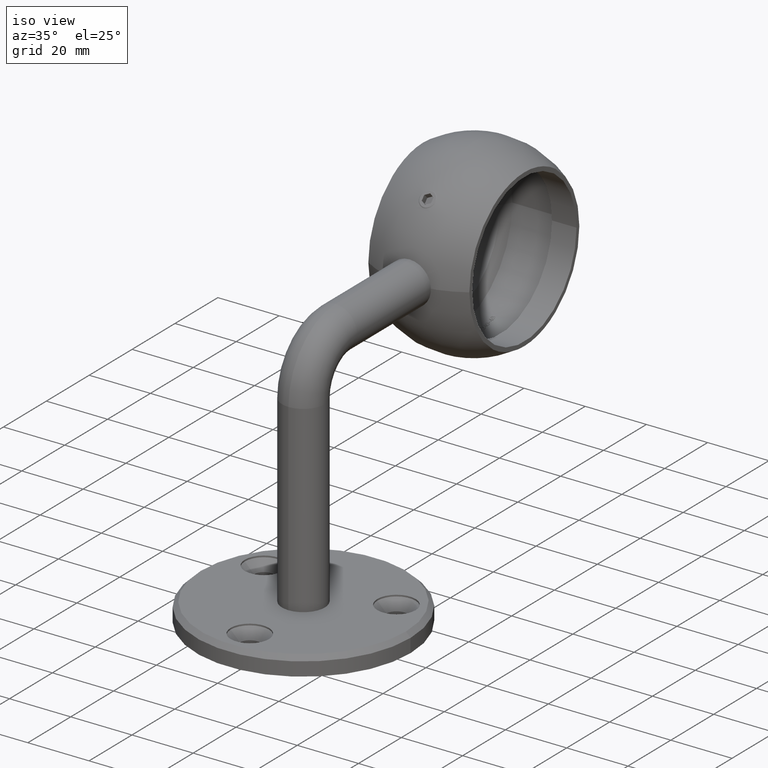
[diagram: clean part render]
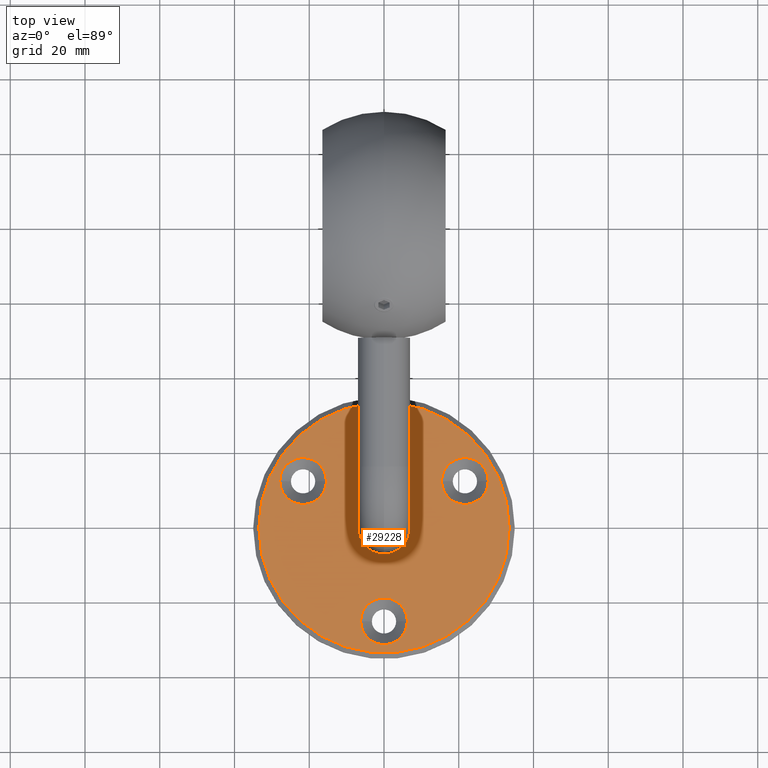
[diagram: tour spotlight — one face highlighted and labeled with its STEP entity id]
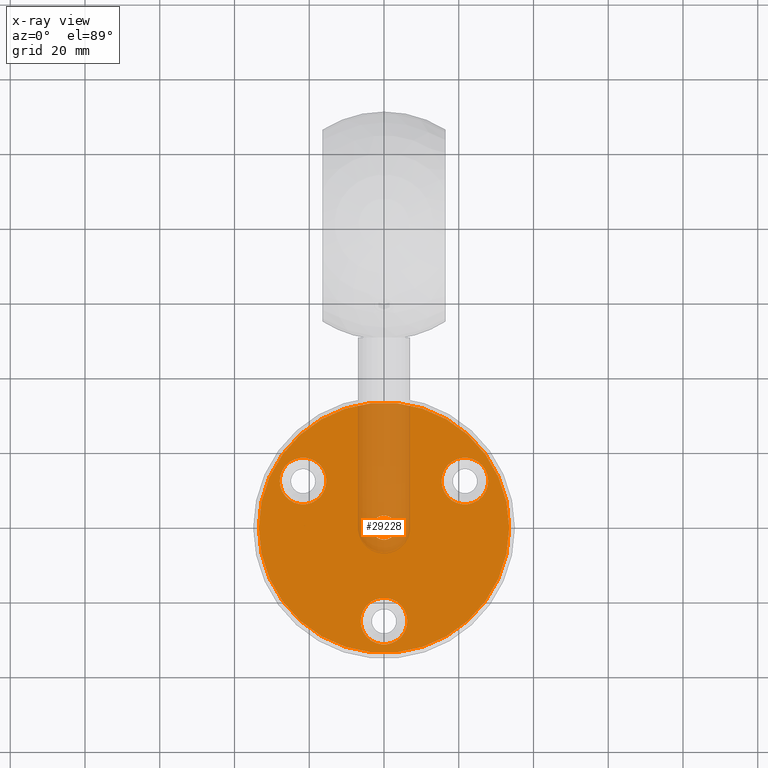
[diagram: x-ray of the same camera — body ghosted, this tour face saturated]
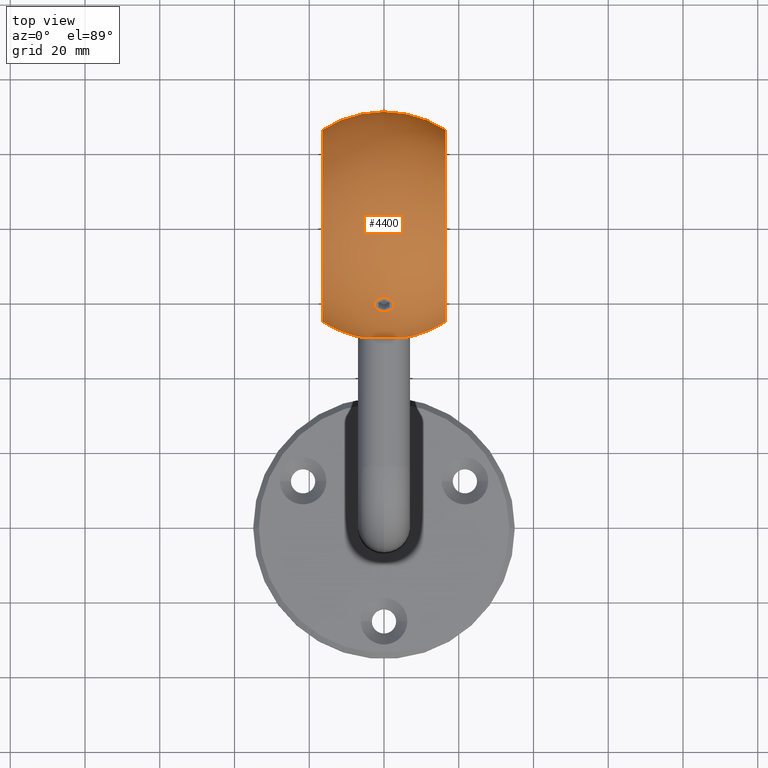
[diagram: tour spotlight — one face highlighted and labeled with its STEP entity id]
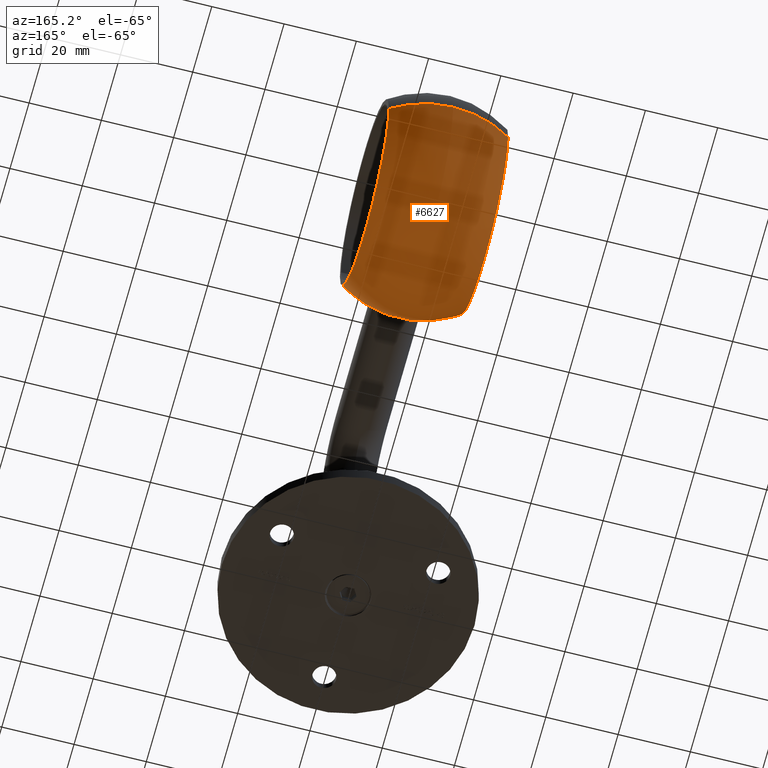
[diagram: tour spotlight — one face highlighted and labeled with its STEP entity id]
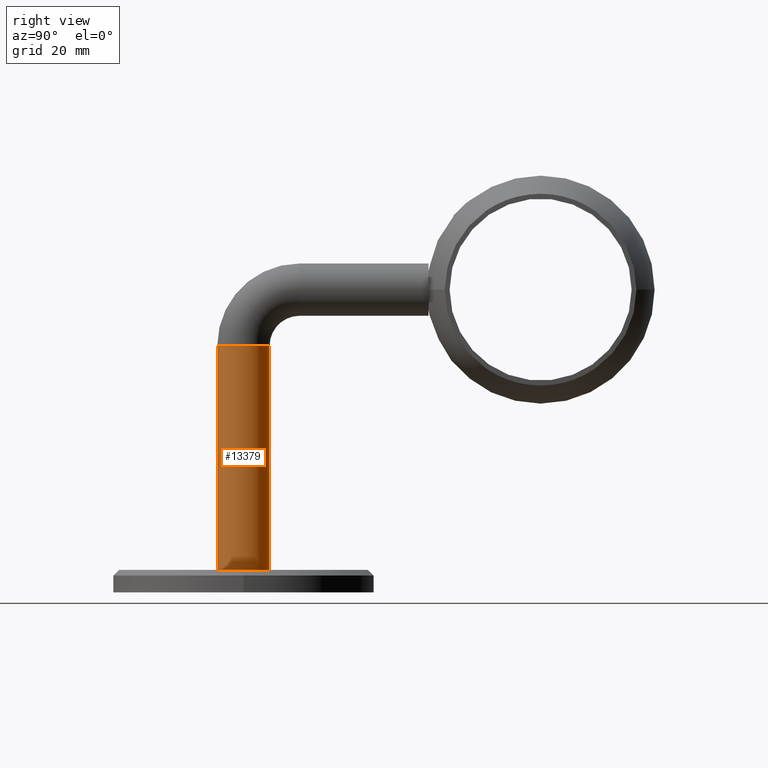
[diagram: tour spotlight — one face highlighted and labeled with its STEP entity id]
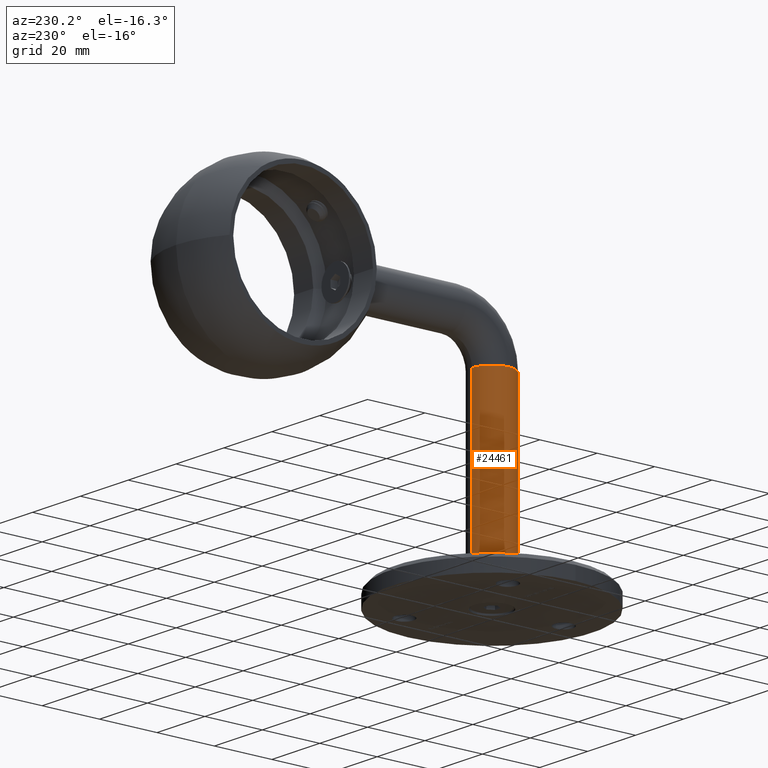
[diagram: tour spotlight — one face highlighted and labeled with its STEP entity id]
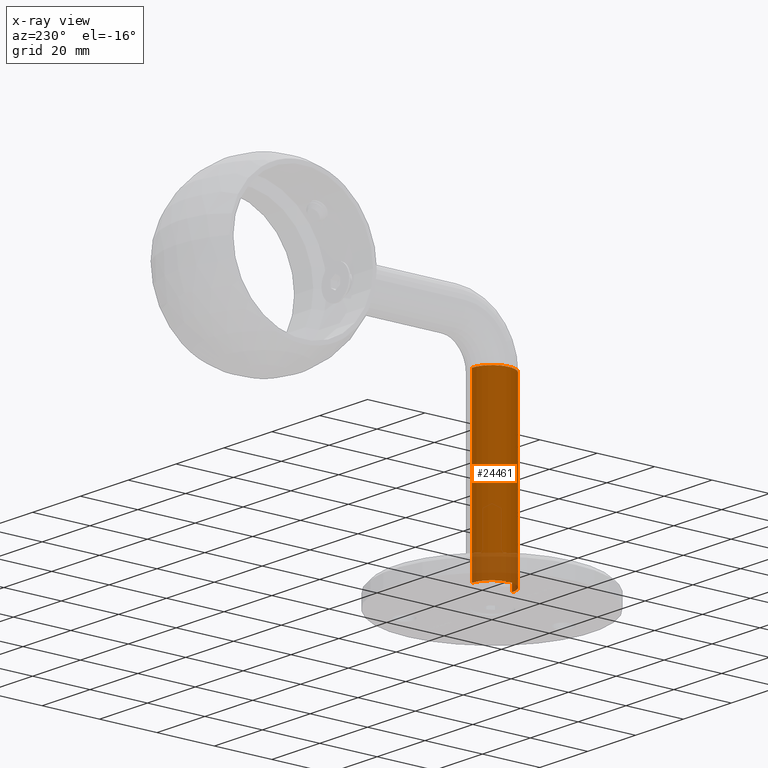
[diagram: x-ray of the same camera — body ghosted, this tour face saturated]
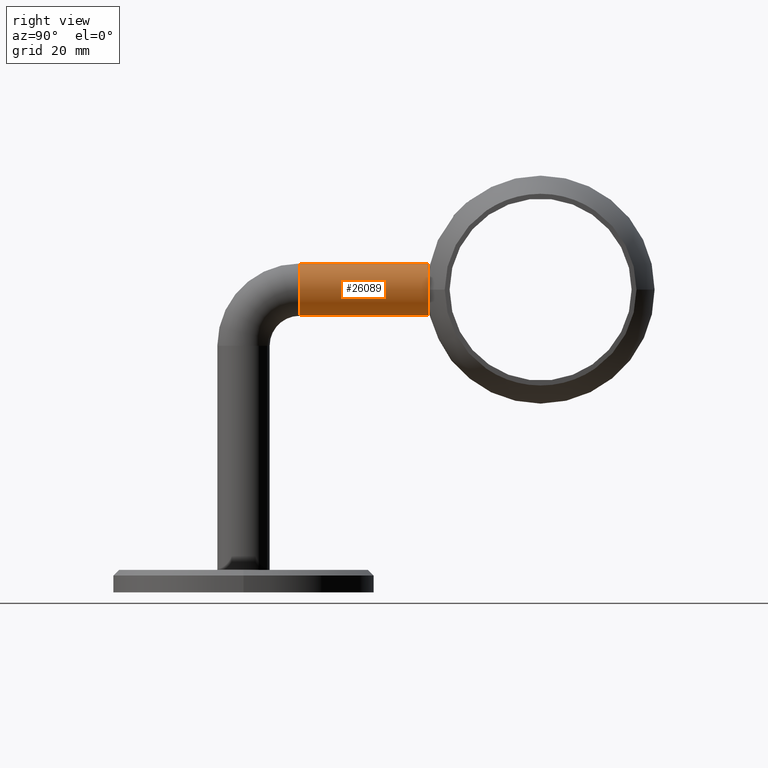
[diagram: tour spotlight — one face highlighted and labeled with its STEP entity id]
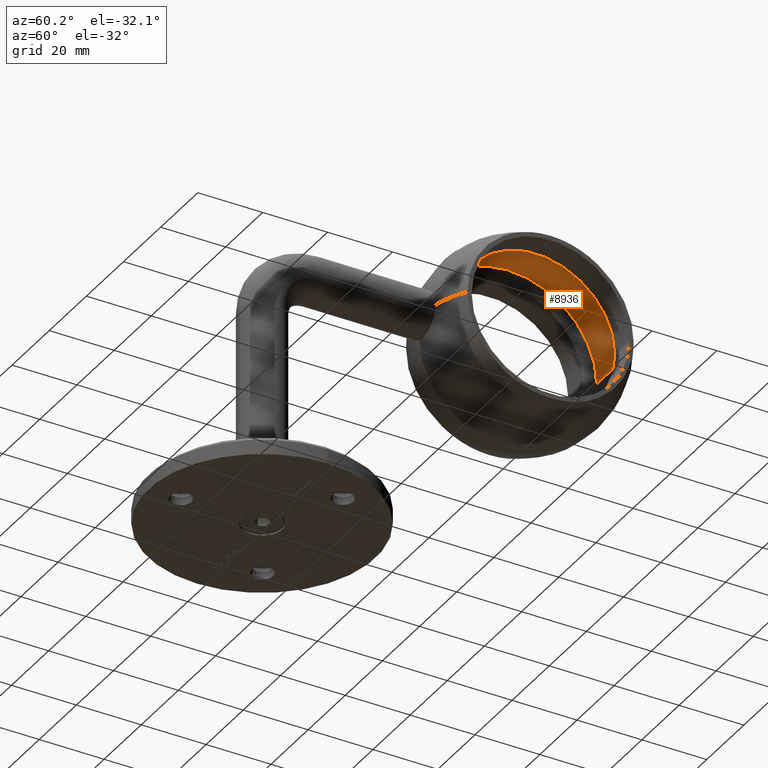
[diagram: tour spotlight — one face highlighted and labeled with its STEP entity id]
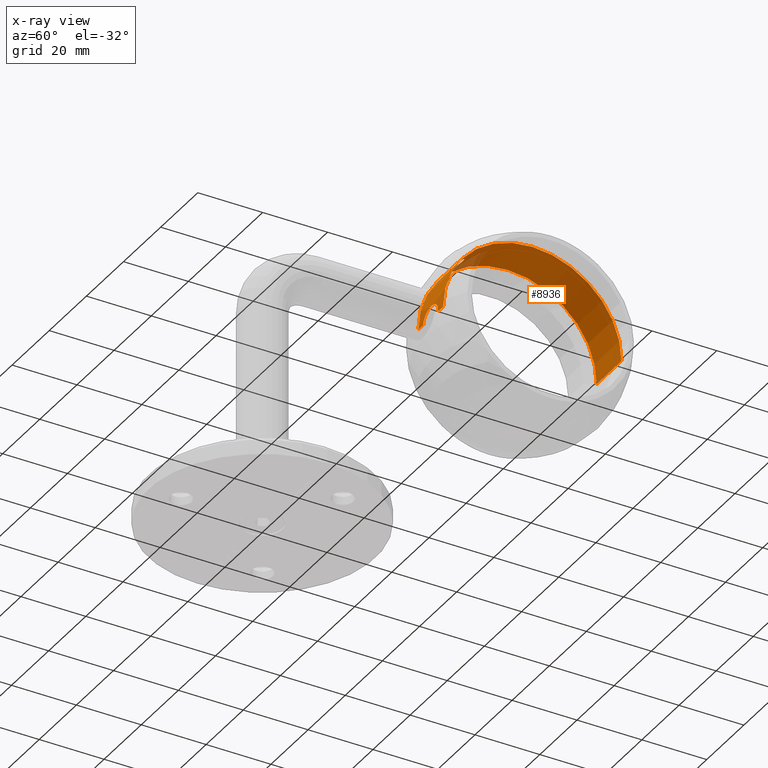
[diagram: x-ray of the same camera — body ghosted, this tour face saturated]
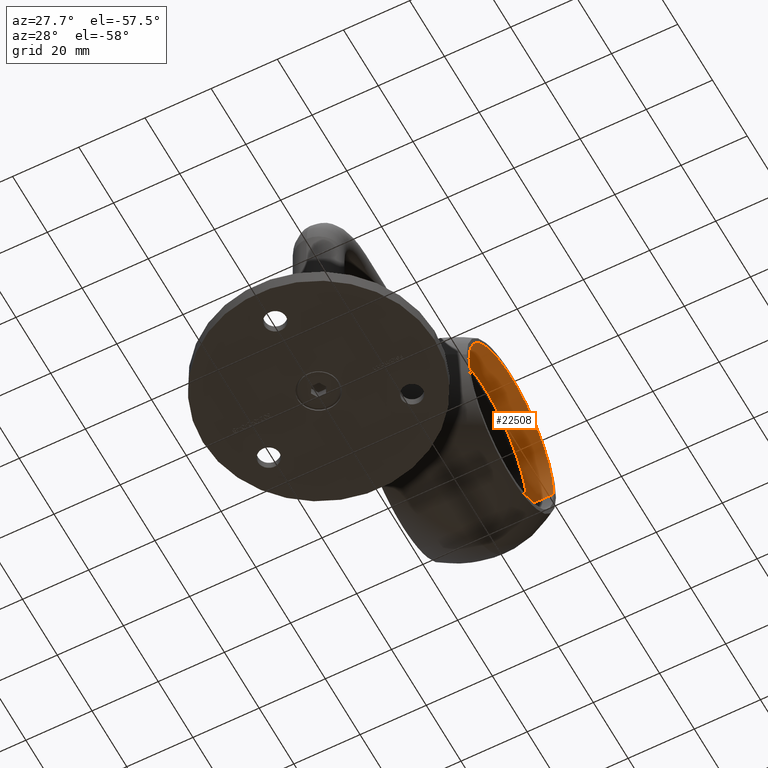
[diagram: tour spotlight — one face highlighted and labeled with its STEP entity id]
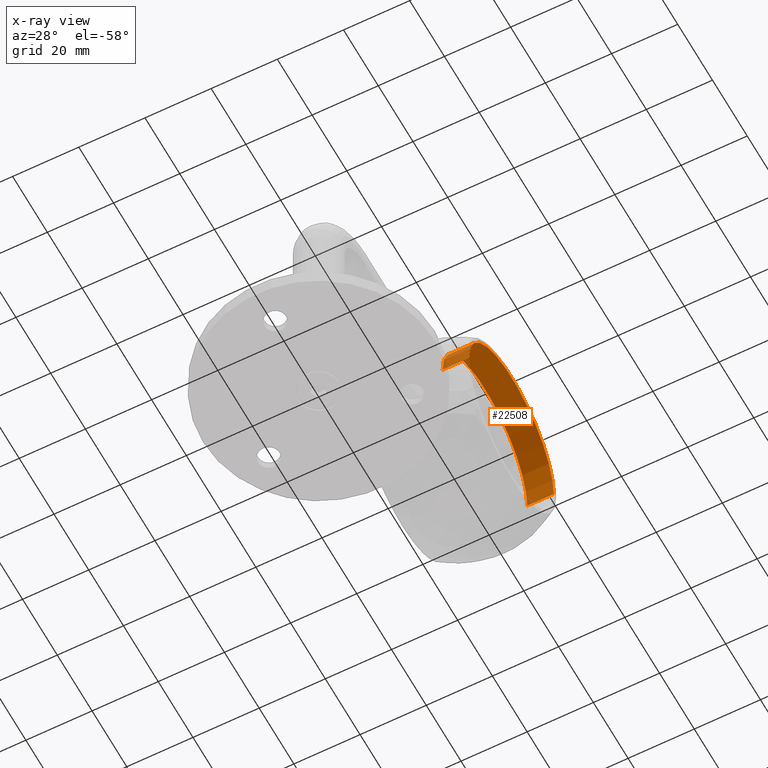
[diagram: x-ray of the same camera — body ghosted, this tour face saturated]
A machine part: a face-by-face anatomy tour. The part has 831 B-rep faces; the first image is the clean iso view, then the 8 largest visible faces are spotlighted one at a time (largest first), each with its STEP entity span.

Face 1 — top view, entity #29228. An x-ray twin of the same camera follows (body ghosted, this face saturated) — the face is partly hidden behind the body. In plain terms, the highlighted planar face has unit normal (0, 0, 1).
Definition (entity closure, byte-faithful):
#219 = PLANE ( 'NONE',  #20669 ) ;
#590 = CARTESIAN_POINT ( 'NONE',  ( -21.65063509461091584, 12.50000000000010303, 6.000000000000001776 ) ) ;
#776 = CARTESIAN_POINT ( 'NONE',  ( 15.40063509461108637, 12.49999999999979927, 6.000000000000001776 ) ) ;
#1119 = VERTEX_POINT ( 'NONE', #24276 ) ;
#1125 = AXIS2_PLACEMENT_3D ( 'NONE', #17915, #5354, #1814 ) ;
#1145 = EDGE_LOOP ( 'NONE', ( #30311, #2206 ) ) ;
#1329 = CARTESIAN_POINT ( 'NONE',  ( 6.249999999999998224, -25.00000000000000000, 6.000000000000001776 ) ) ;
#1814 = DIRECTION ( 'NONE',  ( 1.000000000000000000, 0.000000000000000000, 0.000000000000000000 ) ) ;
#1920 = AXIS2_PLACEMENT_3D ( 'NONE', #2513, #15777, #7804 ) ;
#2005 = CIRCLE ( 'NONE', #26772, 6.249999999999998224 ) ;
#2206 = ORIENTED_EDGE ( 'NONE', *, *, #32135, .F. ) ;
#2408 = CIRCLE ( 'NONE', #1920, 33.50000000000002842 ) ;
#2513 = CARTESIAN_POINT ( 'NONE',  ( 0.000000000000000000, 0.000000000000000000, 5.999999999999998224 ) ) ;
#2539 = AXIS2_PLACEMENT_3D ( 'NONE', #27577, #5792, #24610 ) ;
#2683 = CARTESIAN_POINT ( 'NONE',  ( -27.90063509461091229, 12.50000000000010303, 6.000000000000001776 ) ) ;
#2851 = DIRECTION ( 'NONE',  ( -0.000000000000000000, -0.000000000000000000, 1.000000000000000000 ) ) ;
#3898 = EDGE_CURVE ( 'NONE', #28138, #1119, #5057, .T. ) ;
#5057 = CIRCLE ( 'NONE', #1125, 6.249999999999998224 ) ;
#5180 = ORIENTED_EDGE ( 'NONE', *, *, #26201, .T. ) ;
#5354 = DIRECTION ( 'NONE',  ( -0.000000000000000000, -0.000000000000000000, 1.000000000000000000 ) ) ;
#5561 = DIRECTION ( 'NONE',  ( 1.000000000000000000, 0.000000000000000000, 0.000000000000000000 ) ) ;
#5758 = VERTEX_POINT ( 'NONE', #34297 ) ;
#5792 = DIRECTION ( 'NONE',  ( -0.000000000000000000, -0.000000000000000000, 1.000000000000000000 ) ) ;
#6303 = AXIS2_PLACEMENT_3D ( 'NONE', #19621, #33235, #22348 ) ;
#7089 = ORIENTED_EDGE ( 'NONE', *, *, #27634, .F. ) ;
#7804 = DIRECTION ( 'NONE',  ( 1.000000000000000000, 0.000000000000000000, 0.000000000000000000 ) ) ;
#8215 = DIRECTION ( 'NONE',  ( 0.000000000000000000, 0.000000000000000000, 1.000000000000000000 ) ) ;
#8366 = VERTEX_POINT ( 'NONE', #1329 ) ;
#8378 = FACE_BOUND ( 'NONE', #9412, .T. ) ;
#8821 = CIRCLE ( 'NONE', #2539, 6.249999999999998224 ) ;
#9412 = EDGE_LOOP ( 'NONE', ( #7089, #25381 ) ) ;
#10133 = VERTEX_POINT ( 'NONE', #17264 ) ;
#10145 = CARTESIAN_POINT ( 'NONE',  ( 0.000000000000000000, -25.00000000000000000, 6.000000000000001776 ) ) ;
#10323 = EDGE_CURVE ( 'NONE', #1119, #28138, #11791, .T. ) ;
#10664 = CIRCLE ( 'NONE', #19837, 3.250000000000004441 ) ;
#10746 = DIRECTION ( 'NONE',  ( 1.000000000000000000, 0.000000000000000000, 0.000000000000000000 ) ) ;
#11373 = DIRECTION ( 'NONE',  ( -0.000000000000000000, -0.000000000000000000, 1.000000000000000000 ) ) ;
#11791 = CIRCLE ( 'NONE', #14511, 6.249999999999998224 ) ;
#12892 = CIRCLE ( 'NONE', #24281, 33.50000000000002842 ) ;
#13164 = EDGE_CURVE ( 'NONE', #24125, #23655, #2005, .T. ) ;
#13380 = EDGE_CURVE ( 'NONE', #10133, #8366, #20504, .T. ) ;
#13510 = CARTESIAN_POINT ( 'NONE',  ( 0.000000000000000000, 0.000000000000000000, 5.999999999999998224 ) ) ;
#13623 = EDGE_LOOP ( 'NONE', ( #22505, #16117 ) ) ;
#13764 = VERTEX_POINT ( 'NONE', #23429 ) ;
#14117 = EDGE_CURVE ( 'NONE', #14964, #5758, #12892, .T. ) ;
#14511 = AXIS2_PLACEMENT_3D ( 'NONE', #21606, #11373, #32515 ) ;
#14964 = VERTEX_POINT ( 'NONE', #34128 ) ;
#15192 = EDGE_LOOP ( 'NONE', ( #23272, #19241 ) ) ;
#15686 = EDGE_LOOP ( 'NONE', ( #34852, #5180 ) ) ;
#15777 = DIRECTION ( 'NONE',  ( 0.000000000000000000, 0.000000000000000000, 1.000000000000000000 ) ) ;
#16117 = ORIENTED_EDGE ( 'NONE', *, *, #3898, .F. ) ;
#16848 = CARTESIAN_POINT ( 'NONE',  ( -21.65063509461091584, 12.50000000000010303, 6.000000000000001776 ) ) ;
#17264 = CARTESIAN_POINT ( 'NONE',  ( -6.249999999999998224, -25.00000000000000000, 6.000000000000001776 ) ) ;
#17848 = CARTESIAN_POINT ( 'NONE',  ( 3.250000000000004441, 3.980102097228903655E-16, 5.999999999999998224 ) ) ;
#17915 = CARTESIAN_POINT ( 'NONE',  ( 21.65063509461108282, 12.49999999999979927, 6.000000000000001776 ) ) ;
#18163 = VERTEX_POINT ( 'NONE', #17848 ) ;
#18359 = CIRCLE ( 'NONE', #27000, 6.249999999999998224 ) ;
#18546 = DIRECTION ( 'NONE',  ( 1.000000000000000000, 0.000000000000000000, 0.000000000000000000 ) ) ;
#18629 = CARTESIAN_POINT ( 'NONE',  ( 0.000000000000000000, 0.000000000000000000, 5.999999999999998224 ) ) ;
#18846 = EDGE_CURVE ( 'NONE', #13764, #18163, #10664, .T. ) ;
#19241 = ORIENTED_EDGE ( 'NONE', *, *, #13380, .F. ) ;
#19621 = CARTESIAN_POINT ( 'NONE',  ( 0.000000000000000000, 0.000000000000000000, 5.999999999999998224 ) ) ;
#19837 = AXIS2_PLACEMENT_3D ( 'NONE', #18629, #26895, #10746 ) ;
#20504 = CIRCLE ( 'NONE', #33356, 6.249999999999998224 ) ;
#20669 = AXIS2_PLACEMENT_3D ( 'NONE', #13510, #8215, #24339 ) ;
#21606 = CARTESIAN_POINT ( 'NONE',  ( 21.65063509461108282, 12.49999999999979927, 6.000000000000001776 ) ) ;
#21857 = FACE_BOUND ( 'NONE', #15192, .T. ) ;
#21937 = EDGE_CURVE ( 'NONE', #8366, #10133, #8821, .T. ) ;
#22348 = DIRECTION ( 'NONE',  ( 1.000000000000000000, 0.000000000000000000, 0.000000000000000000 ) ) ;
#22505 = ORIENTED_EDGE ( 'NONE', *, *, #10323, .F. ) ;
#23272 = ORIENTED_EDGE ( 'NONE', *, *, #21937, .F. ) ;
#23326 = CIRCLE ( 'NONE', #6303, 3.250000000000004441 ) ;
#23429 = CARTESIAN_POINT ( 'NONE',  ( -3.250000000000004441, 0.000000000000000000, 5.999999999999998224 ) ) ;
#23454 = CARTESIAN_POINT ( 'NONE',  ( -15.40063509461091584, 12.50000000000010303, 6.000000000000001776 ) ) ;
#23655 = VERTEX_POINT ( 'NONE', #23454 ) ;
#24025 = FACE_BOUND ( 'NONE', #1145, .T. ) ;
#24125 = VERTEX_POINT ( 'NONE', #2683 ) ;
#24276 = CARTESIAN_POINT ( 'NONE',  ( 27.90063509461108282, 12.49999999999979927, 6.000000000000001776 ) ) ;
#24281 = AXIS2_PLACEMENT_3D ( 'NONE', #26693, #34476, #18546 ) ;
#24339 = DIRECTION ( 'NONE',  ( 1.000000000000000000, 0.000000000000000000, -0.000000000000000000 ) ) ;
#24610 = DIRECTION ( 'NONE',  ( 1.000000000000000000, 0.000000000000000000, 0.000000000000000000 ) ) ;
#25381 = ORIENTED_EDGE ( 'NONE', *, *, #13164, .F. ) ;
#26157 = FACE_OUTER_BOUND ( 'NONE', #15686, .T. ) ;
#26201 = EDGE_CURVE ( 'NONE', #5758, #14964, #2408, .T. ) ;
#26693 = CARTESIAN_POINT ( 'NONE',  ( 0.000000000000000000, 0.000000000000000000, 5.999999999999998224 ) ) ;
#26772 = AXIS2_PLACEMENT_3D ( 'NONE', #16848, #27736, #30576 ) ;
#26895 = DIRECTION ( 'NONE',  ( 0.000000000000000000, 0.000000000000000000, 1.000000000000000000 ) ) ;
#27000 = AXIS2_PLACEMENT_3D ( 'NONE', #590, #33124, #27672 ) ;
#27577 = CARTESIAN_POINT ( 'NONE',  ( 0.000000000000000000, -25.00000000000000000, 6.000000000000001776 ) ) ;
#27634 = EDGE_CURVE ( 'NONE', #23655, #24125, #18359, .T. ) ;
#27672 = DIRECTION ( 'NONE',  ( 1.000000000000000000, 0.000000000000000000, 0.000000000000000000 ) ) ;
#27736 = DIRECTION ( 'NONE',  ( -0.000000000000000000, -0.000000000000000000, 1.000000000000000000 ) ) ;
#28138 = VERTEX_POINT ( 'NONE', #776 ) ;
#29228 = ADVANCED_FACE ( 'NONE', ( #26157, #24025, #31165, #8378, #21857 ), #219, .T. ) ;
#30311 = ORIENTED_EDGE ( 'NONE', *, *, #18846, .F. ) ;
#30576 = DIRECTION ( 'NONE',  ( 1.000000000000000000, 0.000000000000000000, 0.000000000000000000 ) ) ;
#31165 = FACE_BOUND ( 'NONE', #13623, .T. ) ;
#32135 = EDGE_CURVE ( 'NONE', #18163, #13764, #23326, .T. ) ;
#32515 = DIRECTION ( 'NONE',  ( 1.000000000000000000, 0.000000000000000000, 0.000000000000000000 ) ) ;
#33124 = DIRECTION ( 'NONE',  ( -0.000000000000000000, -0.000000000000000000, 1.000000000000000000 ) ) ;
#33235 = DIRECTION ( 'NONE',  ( 0.000000000000000000, 0.000000000000000000, 1.000000000000000000 ) ) ;
#33356 = AXIS2_PLACEMENT_3D ( 'NONE', #10145, #2851, #5561 ) ;
#34128 = CARTESIAN_POINT ( 'NONE',  ( -33.50000000000002842, 0.000000000000000000, 5.999999999999998224 ) ) ;
#34297 = CARTESIAN_POINT ( 'NONE',  ( 33.50000000000002842, 4.194415287079687502E-15, 5.999999999999998224 ) ) ;
#34476 = DIRECTION ( 'NONE',  ( 0.000000000000000000, 0.000000000000000000, 1.000000000000000000 ) ) ;
#34852 = ORIENTED_EDGE ( 'NONE', *, *, #14117, .T. ) ;

Face 2 — top view, entity #4400. In plain terms, the highlighted spherical surface has radius 30.5 mm.
Definition (entity closure, byte-faithful):
#800 = EDGE_CURVE ( 'NONE', #13634, #31845, #24135, .T. ) ;
#1729 = CIRCLE ( 'NONE', #19191, 2.499999999999996003 ) ;
#2073 = AXIS2_PLACEMENT_3D ( 'NONE', #25421, #33577, #11987 ) ;
#2308 = CARTESIAN_POINT ( 'NONE',  ( 0.000000000000000000, 0.000000000000000000, -16.50000000000015277 ) ) ;
#2580 = ORIENTED_EDGE ( 'NONE', *, *, #11171, .F. ) ;
#2836 = AXIS2_PLACEMENT_3D ( 'NONE', #2308, #18298, #7268 ) ;
#2856 = ORIENTED_EDGE ( 'NONE', *, *, #12723, .F. ) ;
#3056 = DIRECTION ( 'NONE',  ( 1.000000000000000000, 1.224646799147364547E-16, 2.575058851225172259E-32 ) ) ;
#3068 = AXIS2_PLACEMENT_3D ( 'NONE', #27448, #3056, #16790 ) ;
#3975 = DIRECTION ( 'NONE',  ( 0.7071067811865512365, -0.7071067811865439090, -0.000000000000000000 ) ) ;
#4400 = ADVANCED_FACE ( 'NONE', ( #27771, #13005 ), #32876, .T. ) ;
#5163 = CIRCLE ( 'NONE', #2073, 30.50000000000000355 ) ;
#5863 = CIRCLE ( 'NONE', #27388, 2.499999999999996003 ) ;
#6046 = CIRCLE ( 'NONE', #16230, 4.000000000000037303 ) ;
#6548 = AXIS2_PLACEMENT_3D ( 'NONE', #7108, #31400, #23334 ) ;
#7108 = CARTESIAN_POINT ( 'NONE',  ( 0.000000000000000000, 0.000000000000000000, 0.000000000000000000 ) ) ;
#7268 = DIRECTION ( 'NONE',  ( 0.000000000000000000, 1.000000000000000000, 2.705062478130551281E-16 ) ) ;
#8271 = DIRECTION ( 'NONE',  ( 0.000000000000000000, 1.000000000000000000, 2.705062478130551281E-16 ) ) ;
#8432 = EDGE_CURVE ( 'NONE', #23944, #17592, #1729, .T. ) ;
#9582 = AXIS2_PLACEMENT_3D ( 'NONE', #21452, #19073, #18957 ) ;
#11171 = EDGE_CURVE ( 'NONE', #17592, #23944, #5863, .T. ) ;
#11987 = DIRECTION ( 'NONE',  ( -1.224646799147364547E-16, 1.000000000000000000, 0.000000000000000000 ) ) ;
#12723 = EDGE_CURVE ( 'NONE', #22850, #31845, #33667, .T. ) ;
#13005 = FACE_OUTER_BOUND ( 'NONE', #27345, .T. ) ;
#13634 = VERTEX_POINT ( 'NONE', #20366 ) ;
#14489 = VERTEX_POINT ( 'NONE', #20860 ) ;
#15907 = DIRECTION ( 'NONE',  ( 0.000000000000000000, 0.000000000000000000, 1.000000000000000000 ) ) ;
#16230 = AXIS2_PLACEMENT_3D ( 'NONE', #20870, #29390, #15907 ) ;
#16790 = DIRECTION ( 'NONE',  ( -1.224646799147364547E-16, 1.000000000000000000, 0.000000000000000000 ) ) ;
#16838 = CARTESIAN_POINT ( 'NONE',  ( 0.000000000000000000, 25.65151067676132257, -16.50000000000014566 ) ) ;
#17431 = CARTESIAN_POINT ( 'NONE',  ( 0.000000000000000000, 25.65151067676132612, 16.50000000000014211 ) ) ;
#17519 = CARTESIAN_POINT ( 'NONE',  ( 23.26195221317138007, -19.72641830723825862, -8.326672684688681449E-17 ) ) ;
#17564 = VERTEX_POINT ( 'NONE', #17431 ) ;
#17592 = VERTEX_POINT ( 'NONE', #24987 ) ;
#18298 = DIRECTION ( 'NONE',  ( 0.000000000000000000, 2.102695122396109948E-16, -1.000000000000000000 ) ) ;
#18784 = EDGE_CURVE ( 'NONE', #13634, #20503, #6046, .T. ) ;
#18957 = DIRECTION ( 'NONE',  ( 0.000000000000000000, 0.000000000000000000, 1.000000000000000000 ) ) ;
#19073 = DIRECTION ( 'NONE',  ( -1.000000000000000000, 0.000000000000000000, 0.000000000000000000 ) ) ;
#19191 = AXIS2_PLACEMENT_3D ( 'NONE', #21185, #23673, #31729 ) ;
#19491 = EDGE_CURVE ( 'NONE', #14489, #20503, #5163, .T. ) ;
#20366 = CARTESIAN_POINT ( 'NONE',  ( 3.702911531887616128E-15, -30.23656726548171036, -4.000000000000034639 ) ) ;
#20503 = VERTEX_POINT ( 'NONE', #33259 ) ;
#20860 = CARTESIAN_POINT ( 'NONE',  ( 3.141404044359020723E-15, -25.65151067676132968, 16.50000000000012790 ) ) ;
#20870 = CARTESIAN_POINT ( 'NONE',  ( 0.000000000000000000, -30.23656726548171036, 0.000000000000000000 ) ) ;
#21185 = CARTESIAN_POINT ( 'NONE',  ( 21.49418526020502185, -21.49418526020463460, -8.326672684688681449E-17 ) ) ;
#21452 = CARTESIAN_POINT ( 'NONE',  ( 0.000000000000000000, 0.000000000000000000, 0.000000000000000000 ) ) ;
#21601 = CIRCLE ( 'NONE', #34734, 25.65151067676132612 ) ;
#22787 = ORIENTED_EDGE ( 'NONE', *, *, #32882, .T. ) ;
#22810 = CARTESIAN_POINT ( 'NONE',  ( 21.49418526020502185, -21.49418526020463460, -8.326672684688681449E-17 ) ) ;
#22850 = VERTEX_POINT ( 'NONE', #16838 ) ;
#23334 = DIRECTION ( 'NONE',  ( 0.000000000000000000, 1.000000000000000000, 2.102695122396150377E-16 ) ) ;
#23673 = DIRECTION ( 'NONE',  ( 0.7071067811865512365, -0.7071067811865439090, -0.000000000000000000 ) ) ;
#23944 = VERTEX_POINT ( 'NONE', #17519 ) ;
#24135 = CIRCLE ( 'NONE', #3068, 30.50000000000000355 ) ;
#24401 = CARTESIAN_POINT ( 'NONE',  ( 0.000000000000000000, 0.000000000000000000, 16.50000000000013500 ) ) ;
#24987 = CARTESIAN_POINT ( 'NONE',  ( 19.72641830723866718, -23.26195221317101058, 2.228949729399521159E-16 ) ) ;
#25421 = CARTESIAN_POINT ( 'NONE',  ( 0.000000000000000000, 0.000000000000000000, 0.000000000000000000 ) ) ;
#26251 = EDGE_CURVE ( 'NONE', #17564, #22850, #31534, .T. ) ;
#27345 = EDGE_LOOP ( 'NONE', ( #22787, #32025, #29015, #29867, #2856, #34732 ) ) ;
#27388 = AXIS2_PLACEMENT_3D ( 'NONE', #22810, #3975, #30984 ) ;
#27448 = CARTESIAN_POINT ( 'NONE',  ( 0.000000000000000000, 0.000000000000000000, 0.000000000000000000 ) ) ;
#27771 = FACE_BOUND ( 'NONE', #33558, .T. ) ;
#29015 = ORIENTED_EDGE ( 'NONE', *, *, #18784, .F. ) ;
#29346 = CARTESIAN_POINT ( 'NONE',  ( 3.141404044359020723E-15, -25.65151067676132612, -16.50000000000015987 ) ) ;
#29390 = DIRECTION ( 'NONE',  ( -0.000000000000000000, -1.000000000000000000, -0.000000000000000000 ) ) ;
#29867 = ORIENTED_EDGE ( 'NONE', *, *, #800, .T. ) ;
#30984 = DIRECTION ( 'NONE',  ( -0.7071067811865489050, -0.7071067811865462405, 0.000000000000000000 ) ) ;
#31400 = DIRECTION ( 'NONE',  ( 1.000000000000000000, -0.000000000000000000, 0.000000000000000000 ) ) ;
#31534 = CIRCLE ( 'NONE', #9582, 30.50000000000000355 ) ;
#31729 = DIRECTION ( 'NONE',  ( -0.7071067811865489050, -0.7071067811865462405, 0.000000000000000000 ) ) ;
#31845 = VERTEX_POINT ( 'NONE', #29346 ) ;
#32025 = ORIENTED_EDGE ( 'NONE', *, *, #19491, .T. ) ;
#32810 = DIRECTION ( 'NONE',  ( 0.000000000000000000, 2.102695122396109948E-16, -1.000000000000000000 ) ) ;
#32876 = SPHERICAL_SURFACE ( 'NONE', #6548, 30.50000000000000355 ) ;
#32882 = EDGE_CURVE ( 'NONE', #17564, #14489, #21601, .T. ) ;
#33259 = CARTESIAN_POINT ( 'NONE',  ( 3.702911531887616128E-15, -30.23656726548171036, 4.000000000000034639 ) ) ;
#33558 = EDGE_LOOP ( 'NONE', ( #34575, #2580 ) ) ;
#33577 = DIRECTION ( 'NONE',  ( 1.000000000000000000, 1.224646799147364547E-16, 2.575058851225172259E-32 ) ) ;
#33667 = CIRCLE ( 'NONE', #2836, 25.65151067676132257 ) ;
#34575 = ORIENTED_EDGE ( 'NONE', *, *, #8432, .F. ) ;
#34732 = ORIENTED_EDGE ( 'NONE', *, *, #26251, .F. ) ;
#34734 = AXIS2_PLACEMENT_3D ( 'NONE', #24401, #32810, #8271 ) ;

Face 3 — auxiliary view, entity #6627. In plain terms, the highlighted spherical surface has radius 30.5 mm.
Definition (entity closure, byte-faithful):
#314 = AXIS2_PLACEMENT_3D ( 'NONE', #25859, #1829, #28579 ) ;
#800 = EDGE_CURVE ( 'NONE', #13634, #31845, #24135, .T. ) ;
#1829 = DIRECTION ( 'NONE',  ( 0.000000000000000000, 2.102695122396109948E-16, -1.000000000000000000 ) ) ;
#2037 = ORIENTED_EDGE ( 'NONE', *, *, #9930, .F. ) ;
#2073 = AXIS2_PLACEMENT_3D ( 'NONE', #25421, #33577, #11987 ) ;
#3056 = DIRECTION ( 'NONE',  ( 1.000000000000000000, 1.224646799147364547E-16, 2.575058851225172259E-32 ) ) ;
#3068 = AXIS2_PLACEMENT_3D ( 'NONE', #27448, #3056, #16790 ) ;
#4541 = CARTESIAN_POINT ( 'NONE',  ( 0.000000000000000000, 0.000000000000000000, 0.000000000000000000 ) ) ;
#5163 = CIRCLE ( 'NONE', #2073, 30.50000000000000355 ) ;
#5668 = AXIS2_PLACEMENT_3D ( 'NONE', #4541, #23369, #20886 ) ;
#6627 = ADVANCED_FACE ( 'NONE', ( #29213 ), #21578, .T. ) ;
#9391 = EDGE_CURVE ( 'NONE', #31845, #22850, #17726, .T. ) ;
#9582 = AXIS2_PLACEMENT_3D ( 'NONE', #21452, #19073, #18957 ) ;
#9855 = ORIENTED_EDGE ( 'NONE', *, *, #9391, .F. ) ;
#9930 = EDGE_CURVE ( 'NONE', #20503, #13634, #11396, .T. ) ;
#11396 = CIRCLE ( 'NONE', #34152, 4.000000000000037303 ) ;
#11539 = ORIENTED_EDGE ( 'NONE', *, *, #22246, .T. ) ;
#11987 = DIRECTION ( 'NONE',  ( -1.224646799147364547E-16, 1.000000000000000000, 0.000000000000000000 ) ) ;
#12872 = ORIENTED_EDGE ( 'NONE', *, *, #19491, .F. ) ;
#13634 = VERTEX_POINT ( 'NONE', #20366 ) ;
#14184 = CARTESIAN_POINT ( 'NONE',  ( 0.000000000000000000, 0.000000000000000000, 16.50000000000013500 ) ) ;
#14489 = VERTEX_POINT ( 'NONE', #20860 ) ;
#16790 = DIRECTION ( 'NONE',  ( -1.224646799147364547E-16, 1.000000000000000000, 0.000000000000000000 ) ) ;
#16838 = CARTESIAN_POINT ( 'NONE',  ( 0.000000000000000000, 25.65151067676132257, -16.50000000000014566 ) ) ;
#17431 = CARTESIAN_POINT ( 'NONE',  ( 0.000000000000000000, 25.65151067676132612, 16.50000000000014211 ) ) ;
#17564 = VERTEX_POINT ( 'NONE', #17431 ) ;
#17726 = CIRCLE ( 'NONE', #314, 25.65151067676132257 ) ;
#18561 = AXIS2_PLACEMENT_3D ( 'NONE', #14184, #32757, #19248 ) ;
#18957 = DIRECTION ( 'NONE',  ( 0.000000000000000000, 0.000000000000000000, 1.000000000000000000 ) ) ;
#19073 = DIRECTION ( 'NONE',  ( -1.000000000000000000, 0.000000000000000000, 0.000000000000000000 ) ) ;
#19248 = DIRECTION ( 'NONE',  ( 0.000000000000000000, 1.000000000000000000, 2.705062478130551281E-16 ) ) ;
#19491 = EDGE_CURVE ( 'NONE', #14489, #20503, #5163, .T. ) ;
#19502 = DIRECTION ( 'NONE',  ( 0.000000000000000000, 0.000000000000000000, 1.000000000000000000 ) ) ;
#20366 = CARTESIAN_POINT ( 'NONE',  ( 3.702911531887616128E-15, -30.23656726548171036, -4.000000000000034639 ) ) ;
#20503 = VERTEX_POINT ( 'NONE', #33259 ) ;
#20860 = CARTESIAN_POINT ( 'NONE',  ( 3.141404044359020723E-15, -25.65151067676132968, 16.50000000000012790 ) ) ;
#20886 = DIRECTION ( 'NONE',  ( 0.000000000000000000, 1.000000000000000000, 2.102695122396150377E-16 ) ) ;
#21452 = CARTESIAN_POINT ( 'NONE',  ( 0.000000000000000000, 0.000000000000000000, 0.000000000000000000 ) ) ;
#21578 = SPHERICAL_SURFACE ( 'NONE', #5668, 30.50000000000000355 ) ;
#22231 = DIRECTION ( 'NONE',  ( -0.000000000000000000, -1.000000000000000000, -0.000000000000000000 ) ) ;
#22246 = EDGE_CURVE ( 'NONE', #14489, #17564, #30778, .T. ) ;
#22850 = VERTEX_POINT ( 'NONE', #16838 ) ;
#23369 = DIRECTION ( 'NONE',  ( 1.000000000000000000, -0.000000000000000000, 0.000000000000000000 ) ) ;
#24135 = CIRCLE ( 'NONE', #3068, 30.50000000000000355 ) ;
#25421 = CARTESIAN_POINT ( 'NONE',  ( 0.000000000000000000, 0.000000000000000000, 0.000000000000000000 ) ) ;
#25859 = CARTESIAN_POINT ( 'NONE',  ( 0.000000000000000000, 0.000000000000000000, -16.50000000000015277 ) ) ;
#26251 = EDGE_CURVE ( 'NONE', #17564, #22850, #31534, .T. ) ;
#26997 = EDGE_LOOP ( 'NONE', ( #12872, #11539, #29834, #9855, #33766, #2037 ) ) ;
#27448 = CARTESIAN_POINT ( 'NONE',  ( 0.000000000000000000, 0.000000000000000000, 0.000000000000000000 ) ) ;
#28579 = DIRECTION ( 'NONE',  ( 0.000000000000000000, 1.000000000000000000, 2.705062478130551281E-16 ) ) ;
#29213 = FACE_OUTER_BOUND ( 'NONE', #26997, .T. ) ;
#29346 = CARTESIAN_POINT ( 'NONE',  ( 3.141404044359020723E-15, -25.65151067676132612, -16.50000000000015987 ) ) ;
#29834 = ORIENTED_EDGE ( 'NONE', *, *, #26251, .T. ) ;
#30633 = CARTESIAN_POINT ( 'NONE',  ( 0.000000000000000000, -30.23656726548171036, 0.000000000000000000 ) ) ;
#30778 = CIRCLE ( 'NONE', #18561, 25.65151067676132612 ) ;
#31534 = CIRCLE ( 'NONE', #9582, 30.50000000000000355 ) ;
#31845 = VERTEX_POINT ( 'NONE', #29346 ) ;
#32757 = DIRECTION ( 'NONE',  ( 0.000000000000000000, 2.102695122396109948E-16, -1.000000000000000000 ) ) ;
#33259 = CARTESIAN_POINT ( 'NONE',  ( 3.702911531887616128E-15, -30.23656726548171036, 4.000000000000034639 ) ) ;
#33577 = DIRECTION ( 'NONE',  ( 1.000000000000000000, 1.224646799147364547E-16, 2.575058851225172259E-32 ) ) ;
#33766 = ORIENTED_EDGE ( 'NONE', *, *, #800, .F. ) ;
#34152 = AXIS2_PLACEMENT_3D ( 'NONE', #30633, #22231, #19502 ) ;

Face 4 — right view, entity #13379. In plain terms, the highlighted cylindrical surface (edge-blend (fillet) strip) has radius 7 mm, axis along (0, 0, -1).
Definition (entity closure, byte-faithful):
#663 = VERTEX_POINT ( 'NONE', #20575 ) ;
#1501 = DIRECTION ( 'NONE',  ( 0.000000000000000000, 0.000000000000000000, 1.000000000000000000 ) ) ;
#2563 = EDGE_CURVE ( 'NONE', #30744, #14207, #29974, .T. ) ;
#3974 = AXIS2_PLACEMENT_3D ( 'NONE', #15127, #1501, #31444 ) ;
#5361 = FACE_OUTER_BOUND ( 'NONE', #29866, .T. ) ;
#5376 = CARTESIAN_POINT ( 'NONE',  ( 0.000000000000000000, 6.999999999999992895, 60.00000000000000711 ) ) ;
#11088 = ORIENTED_EDGE ( 'NONE', *, *, #34341, .T. ) ;
#12103 = AXIS2_PLACEMENT_3D ( 'NONE', #28777, #12606, #34202 ) ;
#12606 = DIRECTION ( 'NONE',  ( -0.000000000000000000, 1.156482317317871478E-16, -1.000000000000000000 ) ) ;
#12648 = EDGE_CURVE ( 'NONE', #25870, #663, #28584, .T. ) ;
#13379 = ADVANCED_FACE ( 'NONE', ( #5361 ), #34020, .T. ) ;
#13407 = CARTESIAN_POINT ( 'NONE',  ( 8.572527594031473190E-16, -7.000000000000007105, 60.00000000000000711 ) ) ;
#14055 = LINE ( 'NONE', #34831, #19936 ) ;
#14207 = VERTEX_POINT ( 'NONE', #5376 ) ;
#15127 = CARTESIAN_POINT ( 'NONE',  ( 0.000000000000000000, 0.000000000000000000, 0.000000000000000000 ) ) ;
#15512 = ORIENTED_EDGE ( 'NONE', *, *, #32373, .F. ) ;
#17332 = LINE ( 'NONE', #13407, #18175 ) ;
#18175 = VECTOR ( 'NONE', #24233, 1000.000000000000000 ) ;
#19694 = CARTESIAN_POINT ( 'NONE',  ( 0.000000000000000000, -6.938893903907228378E-15, 60.00000000000000711 ) ) ;
#19936 = VECTOR ( 'NONE', #32284, 1000.000000000000000 ) ;
#20575 = CARTESIAN_POINT ( 'NONE',  ( 0.000000000000000000, 7.000000000000000000, 0.000000000000000000 ) ) ;
#24233 = DIRECTION ( 'NONE',  ( -0.000000000000000000, 1.156482317317871478E-16, -1.000000000000000000 ) ) ;
#25870 = VERTEX_POINT ( 'NONE', #27284 ) ;
#27284 = CARTESIAN_POINT ( 'NONE',  ( 8.572527594031473190E-16, -7.000000000000000000, 0.000000000000000000 ) ) ;
#27511 = DIRECTION ( 'NONE',  ( 1.000000000000000000, 0.000000000000000000, 0.000000000000000000 ) ) ;
#28157 = AXIS2_PLACEMENT_3D ( 'NONE', #19694, #30705, #27511 ) ;
#28584 = CIRCLE ( 'NONE', #3974, 7.000000000000000000 ) ;
#28589 = ORIENTED_EDGE ( 'NONE', *, *, #12648, .T. ) ;
#28777 = CARTESIAN_POINT ( 'NONE',  ( 0.000000000000000000, -6.938893903907228378E-15, 60.00000000000000711 ) ) ;
#29866 = EDGE_LOOP ( 'NONE', ( #30492, #11088, #28589, #15512 ) ) ;
#29974 = CIRCLE ( 'NONE', #28157, 7.000000000000000000 ) ;
#30492 = ORIENTED_EDGE ( 'NONE', *, *, #2563, .F. ) ;
#30705 = DIRECTION ( 'NONE',  ( 0.000000000000000000, 0.000000000000000000, 1.000000000000000000 ) ) ;
#30744 = VERTEX_POINT ( 'NONE', #32380 ) ;
#31444 = DIRECTION ( 'NONE',  ( 1.000000000000000000, 0.000000000000000000, 0.000000000000000000 ) ) ;
#32284 = DIRECTION ( 'NONE',  ( -0.000000000000000000, 1.156482317317871478E-16, -1.000000000000000000 ) ) ;
#32373 = EDGE_CURVE ( 'NONE', #14207, #663, #14055, .T. ) ;
#32380 = CARTESIAN_POINT ( 'NONE',  ( 8.572527594031476148E-16, -7.000000000000007105, 60.00000000000000711 ) ) ;
#34020 = CYLINDRICAL_SURFACE ( 'NONE', #12103, 7.000000000000000000 ) ;
#34202 = DIRECTION ( 'NONE',  ( 0.000000000000000000, 1.000000000000000000, 0.000000000000000000 ) ) ;
#34341 = EDGE_CURVE ( 'NONE', #30744, #25870, #17332, .T. ) ;
#34831 = CARTESIAN_POINT ( 'NONE',  ( 0.000000000000000000, 6.999999999999992895, 60.00000000000000711 ) ) ;

Face 5 — auxiliary view, entity #24461. An x-ray twin of the same camera follows (body ghosted, this face saturated) — the face is partly hidden behind the body. In plain terms, the highlighted cylindrical surface (edge-blend (fillet) strip) has radius 7 mm, axis along (0, 0, -1).
Definition (entity closure, byte-faithful):
#393 = DIRECTION ( 'NONE',  ( 0.000000000000000000, 0.000000000000000000, 1.000000000000000000 ) ) ;
#663 = VERTEX_POINT ( 'NONE', #20575 ) ;
#2586 = AXIS2_PLACEMENT_3D ( 'NONE', #16053, #18760, #5368 ) ;
#3280 = EDGE_LOOP ( 'NONE', ( #25418, #34892, #13398, #20092 ) ) ;
#5368 = DIRECTION ( 'NONE',  ( 0.000000000000000000, 1.000000000000000000, 0.000000000000000000 ) ) ;
#5376 = CARTESIAN_POINT ( 'NONE',  ( 0.000000000000000000, 6.999999999999992895, 60.00000000000000711 ) ) ;
#5564 = DIRECTION ( 'NONE',  ( 1.000000000000000000, 0.000000000000000000, 0.000000000000000000 ) ) ;
#6883 = DIRECTION ( 'NONE',  ( 0.000000000000000000, 0.000000000000000000, 1.000000000000000000 ) ) ;
#13398 = ORIENTED_EDGE ( 'NONE', *, *, #32373, .T. ) ;
#13407 = CARTESIAN_POINT ( 'NONE',  ( 8.572527594031473190E-16, -7.000000000000007105, 60.00000000000000711 ) ) ;
#14055 = LINE ( 'NONE', #34831, #19936 ) ;
#14104 = AXIS2_PLACEMENT_3D ( 'NONE', #25608, #6883, #31064 ) ;
#14207 = VERTEX_POINT ( 'NONE', #5376 ) ;
#14625 = EDGE_CURVE ( 'NONE', #663, #25870, #25110, .T. ) ;
#16053 = CARTESIAN_POINT ( 'NONE',  ( 0.000000000000000000, -6.938893903907228378E-15, 60.00000000000000711 ) ) ;
#17332 = LINE ( 'NONE', #13407, #18175 ) ;
#18175 = VECTOR ( 'NONE', #24233, 1000.000000000000000 ) ;
#18760 = DIRECTION ( 'NONE',  ( -0.000000000000000000, 1.156482317317871478E-16, -1.000000000000000000 ) ) ;
#19936 = VECTOR ( 'NONE', #32284, 1000.000000000000000 ) ;
#20092 = ORIENTED_EDGE ( 'NONE', *, *, #14625, .T. ) ;
#20449 = AXIS2_PLACEMENT_3D ( 'NONE', #21673, #393, #5564 ) ;
#20575 = CARTESIAN_POINT ( 'NONE',  ( 0.000000000000000000, 7.000000000000000000, 0.000000000000000000 ) ) ;
#21673 = CARTESIAN_POINT ( 'NONE',  ( 0.000000000000000000, 0.000000000000000000, 0.000000000000000000 ) ) ;
#24233 = DIRECTION ( 'NONE',  ( -0.000000000000000000, 1.156482317317871478E-16, -1.000000000000000000 ) ) ;
#24461 = ADVANCED_FACE ( 'NONE', ( #28161 ), #29045, .T. ) ;
#25110 = CIRCLE ( 'NONE', #20449, 7.000000000000000000 ) ;
#25418 = ORIENTED_EDGE ( 'NONE', *, *, #34341, .F. ) ;
#25554 = CIRCLE ( 'NONE', #14104, 7.000000000000000000 ) ;
#25608 = CARTESIAN_POINT ( 'NONE',  ( 0.000000000000000000, -6.938893903907228378E-15, 60.00000000000000711 ) ) ;
#25870 = VERTEX_POINT ( 'NONE', #27284 ) ;
#27278 = EDGE_CURVE ( 'NONE', #14207, #30744, #25554, .T. ) ;
#27284 = CARTESIAN_POINT ( 'NONE',  ( 8.572527594031473190E-16, -7.000000000000000000, 0.000000000000000000 ) ) ;
#28161 = FACE_OUTER_BOUND ( 'NONE', #3280, .T. ) ;
#29045 = CYLINDRICAL_SURFACE ( 'NONE', #2586, 7.000000000000000000 ) ;
#30744 = VERTEX_POINT ( 'NONE', #32380 ) ;
#31064 = DIRECTION ( 'NONE',  ( 1.000000000000000000, 0.000000000000000000, 0.000000000000000000 ) ) ;
#32284 = DIRECTION ( 'NONE',  ( -0.000000000000000000, 1.156482317317871478E-16, -1.000000000000000000 ) ) ;
#32373 = EDGE_CURVE ( 'NONE', #14207, #663, #14055, .T. ) ;
#32380 = CARTESIAN_POINT ( 'NONE',  ( 8.572527594031476148E-16, -7.000000000000007105, 60.00000000000000711 ) ) ;
#34341 = EDGE_CURVE ( 'NONE', #30744, #25870, #17332, .T. ) ;
#34831 = CARTESIAN_POINT ( 'NONE',  ( 0.000000000000000000, 6.999999999999992895, 60.00000000000000711 ) ) ;
#34892 = ORIENTED_EDGE ( 'NONE', *, *, #27278, .F. ) ;

Face 6 — right view, entity #26089. In plain terms, the highlighted cylindrical surface (edge-blend (fillet) strip) has radius 7 mm, axis along (0, 1, 0).
Definition (entity closure, byte-faithful):
#963 = CARTESIAN_POINT ( 'NONE',  ( 0.000000000000000000, 14.99999999999999289, 81.99999999999998579 ) ) ;
#1312 = EDGE_CURVE ( 'NONE', #12886, #8877, #24933, .T. ) ;
#1819 = DIRECTION ( 'NONE',  ( 0.000000000000000000, 0.000000000000000000, 1.000000000000000000 ) ) ;
#3737 = LINE ( 'NONE', #9399, #8357 ) ;
#4773 = EDGE_CURVE ( 'NONE', #19634, #21483, #3737, .T. ) ;
#4887 = CARTESIAN_POINT ( 'NONE',  ( 8.572527594031465301E-16, 14.99999999999999289, 67.99999999999997158 ) ) ;
#6983 = CARTESIAN_POINT ( 'NONE',  ( 8.572527594031465301E-16, 49.49999999999997868, 67.99999999999997158 ) ) ;
#7378 = AXIS2_PLACEMENT_3D ( 'NONE', #17729, #9613, #23268 ) ;
#8105 = DIRECTION ( 'NONE',  ( 0.000000000000000000, 1.000000000000000000, 6.123233995736766036E-17 ) ) ;
#8357 = VECTOR ( 'NONE', #23292, 1000.000000000000000 ) ;
#8877 = VERTEX_POINT ( 'NONE', #13030 ) ;
#9399 = CARTESIAN_POINT ( 'NONE',  ( 8.572527594031473190E-16, 14.99999999999999289, 67.99999999999997158 ) ) ;
#9613 = DIRECTION ( 'NONE',  ( 0.000000000000000000, 1.000000000000000000, 6.123233995736766036E-17 ) ) ;
#10783 = ORIENTED_EDGE ( 'NONE', *, *, #4773, .T. ) ;
#12886 = VERTEX_POINT ( 'NONE', #13486 ) ;
#13030 = CARTESIAN_POINT ( 'NONE',  ( 0.000000000000000000, 49.49999999999997868, 81.99999999999998579 ) ) ;
#13356 = AXIS2_PLACEMENT_3D ( 'NONE', #19018, #8105, #34850 ) ;
#13486 = CARTESIAN_POINT ( 'NONE',  ( 0.000000000000000000, 14.99999999999999289, 81.99999999999998579 ) ) ;
#14077 = EDGE_CURVE ( 'NONE', #8877, #21483, #15416, .T. ) ;
#15416 = CIRCLE ( 'NONE', #7378, 7.000000000000000000 ) ;
#15474 = ORIENTED_EDGE ( 'NONE', *, *, #1312, .F. ) ;
#17470 = AXIS2_PLACEMENT_3D ( 'NONE', #28102, #25495, #1819 ) ;
#17575 = ORIENTED_EDGE ( 'NONE', *, *, #14077, .F. ) ;
#17729 = CARTESIAN_POINT ( 'NONE',  ( 0.000000000000000000, 49.49999999999997868, 74.99999999999998579 ) ) ;
#18615 = VECTOR ( 'NONE', #22496, 1000.000000000000000 ) ;
#18830 = CYLINDRICAL_SURFACE ( 'NONE', #17470, 7.000000000000006217 ) ;
#19018 = CARTESIAN_POINT ( 'NONE',  ( 0.000000000000000000, 14.99999999999999289, 74.99999999999998579 ) ) ;
#19634 = VERTEX_POINT ( 'NONE', #4887 ) ;
#20849 = EDGE_CURVE ( 'NONE', #12886, #19634, #31697, .T. ) ;
#21483 = VERTEX_POINT ( 'NONE', #6983 ) ;
#22496 = DIRECTION ( 'NONE',  ( 0.000000000000000000, 1.000000000000000000, 0.000000000000000000 ) ) ;
#23124 = ORIENTED_EDGE ( 'NONE', *, *, #20849, .T. ) ;
#23268 = DIRECTION ( 'NONE',  ( 1.000000000000000000, 0.000000000000000000, 0.000000000000000000 ) ) ;
#23292 = DIRECTION ( 'NONE',  ( 0.000000000000000000, 1.000000000000000000, 0.000000000000000000 ) ) ;
#24933 = LINE ( 'NONE', #963, #18615 ) ;
#25495 = DIRECTION ( 'NONE',  ( 0.000000000000000000, 1.000000000000000000, 0.000000000000000000 ) ) ;
#26089 = ADVANCED_FACE ( 'NONE', ( #31107 ), #18830, .T. ) ;
#28102 = CARTESIAN_POINT ( 'NONE',  ( 0.000000000000000000, 14.99999999999999289, 74.99999999999998579 ) ) ;
#31107 = FACE_OUTER_BOUND ( 'NONE', #32251, .T. ) ;
#31697 = CIRCLE ( 'NONE', #13356, 7.000000000000000000 ) ;
#32251 = EDGE_LOOP ( 'NONE', ( #23124, #10783, #17575, #15474 ) ) ;
#34850 = DIRECTION ( 'NONE',  ( 1.000000000000000000, 0.000000000000000000, 0.000000000000000000 ) ) ;

Face 7 — auxiliary view, entity #8936. An x-ray twin of the same camera follows (body ghosted, this face saturated) — the face is partly hidden behind the body. In plain terms, the highlighted cylindrical surface (partial cylindrical patch) has radius 27.5 mm, axis along (1, 0, 0).
Definition (entity closure, byte-faithful):
#36 = CARTESIAN_POINT ( 'NONE',  ( 18.24330551947958412, -20.57779112591837034, -1.884763639299463778 ) ) ;
#146 = AXIS2_PLACEMENT_3D ( 'NONE', #30522, #19860, #1056 ) ;
#450 = CARTESIAN_POINT ( 'NONE',  ( 21.09010933610924354, -17.64859798253066714, 0.6587862080281705612 ) ) ;
#454 = EDGE_CURVE ( 'NONE', #27133, #4345, #15653, .T. ) ;
#610 = CARTESIAN_POINT ( 'NONE',  ( 0.5266187295294194604, -27.49615626491881315, -3.973812151571584295 ) ) ;
#667 = CARTESIAN_POINT ( 'NONE',  ( 19.21142868062159081, -19.67731044638349047, 2.483550663674020331 ) ) ;
#850 = CARTESIAN_POINT ( 'NONE',  ( 3.871638052939876840, -27.22614765953741411, 1.039118656845853694 ) ) ;
#966 = CARTESIAN_POINT ( 'NONE',  ( 0.2646671331982614617, -27.50000000000000000, 4.000000000000037303 ) ) ;
#1056 = DIRECTION ( 'NONE',  ( 0.000000000000000000, 1.000000000000000000, 2.207829878515936683E-16 ) ) ;
#1076 = CARTESIAN_POINT ( 'NONE',  ( 2.007548277359684885, -27.42748467631135156, -3.469520780255055836 ) ) ;
#1333 = FACE_BOUND ( 'NONE', #1430, .T. ) ;
#1430 = EDGE_LOOP ( 'NONE', ( #33290, #3812 ) ) ;
#1919 = CARTESIAN_POINT ( 'NONE',  ( 20.96904194994008463, -17.79194333867187794, -1.108997373294552835 ) ) ;
#2147 = CARTESIAN_POINT ( 'NONE',  ( 20.57872571350032587, -18.24224203245764997, -1.883346588676199973 ) ) ;
#2348 = EDGE_CURVE ( 'NONE', #27133, #7278, #24041, .T. ) ;
#2381 = CARTESIAN_POINT ( 'NONE',  ( 20.21314477080231953, -18.64675390271622035, -2.247158528278162759 ) ) ;
#2495 = CARTESIAN_POINT ( 'NONE',  ( 17.65905837803321532, -21.08100301674634736, -0.6495032110095433353 ) ) ;
#2956 = CARTESIAN_POINT ( 'NONE',  ( 19.56143771626516781, -19.32942764959023663, -2.499940890499552371 ) ) ;
#2960 = CARTESIAN_POINT ( 'NONE',  ( 3.367778603088559186E-15, -27.49999999999999645, -4.000000000000000000 ) ) ;
#3025 = CARTESIAN_POINT ( 'NONE',  ( 20.31000002188381259, -18.54110036028755459, 2.170749785389682884 ) ) ;
#3198 = CARTESIAN_POINT ( 'NONE',  ( 1.773479552262147596, -27.44382533313089567, -3.594917333409958893 ) ) ;
#3228 = CARTESIAN_POINT ( 'NONE',  ( 0.000000000000000000, 0.000000000000000000, -6.681346652052756241 ) ) ;
#3376 = CARTESIAN_POINT ( 'NONE',  ( 20.21286720424960848, -18.64706332732786365, 2.247442921036952423 ) ) ;
#3667 = CARTESIAN_POINT ( 'NONE',  ( 3.796015717298281356, -27.23693307565863364, -1.288052317721245510 ) ) ;
#3812 = ORIENTED_EDGE ( 'NONE', *, *, #5130, .F. ) ;
#4218 = VERTEX_POINT ( 'NONE', #2960 ) ;
#4345 = VERTEX_POINT ( 'NONE', #11653 ) ;
#5130 = EDGE_CURVE ( 'NONE', #7499, #25627, #32200, .T. ) ;
#5312 = ORIENTED_EDGE ( 'NONE', *, *, #2348, .T. ) ;
#5326 = CARTESIAN_POINT ( 'NONE',  ( 17.60978186703539450, -21.12218297397985722, -0.3289775194266079672 ) ) ;
#5743 = CARTESIAN_POINT ( 'NONE',  ( 18.86609553344330337, -20.00858154239390529, 2.371534827343444451 ) ) ;
#5920 = CARTESIAN_POINT ( 'NONE',  ( 1.289345860574932834, -27.47082754285912287, -3.795556297588219774 ) ) ;
#5945 = DIRECTION ( 'NONE',  ( 0.000000000000000000, 1.000000000000000000, 2.207829878515936683E-16 ) ) ;
#6092 = CARTESIAN_POINT ( 'NONE',  ( 19.56080461424748407, -19.33008480884852887, 2.500128011959864338 ) ) ;
#6203 = CARTESIAN_POINT ( 'NONE',  ( 19.89687924100969241, -18.98393376550725264, 2.420703192224074929 ) ) ;
#6269 = CARTESIAN_POINT ( 'NONE',  ( 3.013245183182017950, -27.33504437332658199, 2.643530106661205803 ) ) ;
#7171 = DIRECTION ( 'NONE',  ( 0.000000000000000000, 2.102695122396109948E-16, -1.000000000000000000 ) ) ;
#7241 = CARTESIAN_POINT ( 'NONE',  ( 3.367778697655252073E-15, -27.49999999999999645, -5.782411586589412465E-15 ) ) ;
#7278 = VERTEX_POINT ( 'NONE', #13307 ) ;
#7455 = CARTESIAN_POINT ( 'NONE',  ( 21.08134140762907194, -17.65865404667383487, -0.6474268795627877715 ) ) ;
#7499 = VERTEX_POINT ( 'NONE', #31123 ) ;
#7525 = DIRECTION ( 'NONE',  ( 0.000000000000000000, 1.000000000000000000, 2.102695122396150377E-16 ) ) ;
#7629 = CARTESIAN_POINT ( 'NONE',  ( 0.000000000000000000, 27.49999999999999645, 5.782411586589412465E-15 ) ) ;
#7793 = CARTESIAN_POINT ( 'NONE',  ( 17.85151998470860946, -20.91844818930286465, -1.254388137932419767 ) ) ;
#8027 = CARTESIAN_POINT ( 'NONE',  ( 18.64693020513163901, -20.21298944726209257, -2.247348544530257897 ) ) ;
#8143 = CARTESIAN_POINT ( 'NONE',  ( 18.98166221873766801, -19.89905077343446393, -2.419903579468489330 ) ) ;
#8260 = CARTESIAN_POINT ( 'NONE',  ( 18.33780279913372269, -20.49373978868122492, -1.988087370677970478 ) ) ;
#8443 = CARTESIAN_POINT ( 'NONE',  ( 17.60936747678129066, -21.12252848226962598, 0.3253905897743618603 ) ) ;
#8551 = CARTESIAN_POINT ( 'NONE',  ( 17.98929866844627057, -20.80008466241105580, 1.525376546167758862 ) ) ;
#8622 = CIRCLE ( 'NONE', #16824, 27.49999999999999645 ) ;
#8661 = CARTESIAN_POINT ( 'NONE',  ( 17.85035137328975807, -20.91944895058477627, 1.251939531308843057 ) ) ;
#8715 = CARTESIAN_POINT ( 'NONE',  ( 1.039972939208365421, -27.48152821290766212, -3.871300374290722157 ) ) ;
#8770 = CARTESIAN_POINT ( 'NONE',  ( 18.33713927946627109, -20.49433605929375446, 1.987444413381029173 ) ) ;
#8829 = CARTESIAN_POINT ( 'NONE',  ( 3.595123532143805534, -27.26417476739561963, 1.772833445078506820 ) ) ;
#8936 = ADVANCED_FACE ( 'NONE', ( #20268, #1333 ), #34619, .F. ) ;
#9069 = CARTESIAN_POINT ( 'NONE',  ( 3.999902193648591453, -27.20755010012776864, 0.2627735224576505102 ) ) ;
#10142 = B_SPLINE_CURVE_WITH_KNOTS ( 'NONE', 3,
 ( #34198, #23451, #26176, #7455, #15532, #1919, #29249, #18490, #29008, #2147, #31742, #20964, #2381, #10839, #16006, #10609, #2956, #16351, #13195, #8143, #29594, #8027, #29712, #8260, #36, #34887, #21321, #7793, #26755, #26875, #2495, #5326, #13314, #13550 ),
 .UNSPECIFIED., .F., .F.,
 ( 4, 2, 2, 2, 2, 2, 2, 2, 2, 2, 2, 2, 2, 2, 2, 2, 4 ),
 ( 1.445217582041968007E-19, 0.0004887608213269574843, 0.0009775216426539149687, 0.001466282463980871911, 0.001955043285307829070, 0.002443804106634786012, 0.002932564927961742954, 0.003421325749288700764, 0.003910086570615658140, 0.004398847391942615516, 0.004887608213269572892, 0.005376369034596530268, 0.005865129855923486776, 0.006353890677250445020, 0.006842651498577402396, 0.007331412319904359771, 0.007820173141231316280 ),
 .UNSPECIFIED. ) ;
#10609 = CARTESIAN_POINT ( 'NONE',  ( 19.67515875157705807, -19.21364576159955107, -2.484065345569536731 ) ) ;
#10839 = CARTESIAN_POINT ( 'NONE',  ( 20.00783205853047519, -18.86688392267033620, -2.371841120872881348 ) ) ;
#10963 = DIRECTION ( 'NONE',  ( 0.000000000000000000, 2.102695122396109948E-16, -1.000000000000000000 ) ) ;
#10991 = VECTOR ( 'NONE', #29301, 1000.000000000000000 ) ;
#11012 = CARTESIAN_POINT ( 'NONE',  ( 0.000000000000000000, 27.49999999999999645, 6.681346652052750024 ) ) ;
#11154 = CARTESIAN_POINT ( 'NONE',  ( 20.00610333634316973, -18.86872546425867725, 2.372773980356492451 ) ) ;
#11271 = CARTESIAN_POINT ( 'NONE',  ( 21.13268368400376573, -17.59714977807068692, 0.3304683012474908810 ) ) ;
#11390 = CARTESIAN_POINT ( 'NONE',  ( 19.32731054834851392, -19.56354576353017194, 2.499870467052628165 ) ) ;
#11499 = CARTESIAN_POINT ( 'NONE',  ( 21.13268368400376929, -17.59714977807068337, 6.545863865805010787E-17 ) ) ;
#11653 = CARTESIAN_POINT ( 'NONE',  ( 3.367778697655252073E-15, -27.49999999999999645, 6.681346652052737589 ) ) ;
#12082 = EDGE_CURVE ( 'NONE', #33739, #4218, #17373, .T. ) ;
#13195 = CARTESIAN_POINT ( 'NONE',  ( 19.21246802438047041, -19.67630033014677338, -2.483780185550377162 ) ) ;
#13307 = CARTESIAN_POINT ( 'NONE',  ( 0.000000000000000000, 27.49999999999999645, -6.681346652052750024 ) ) ;
#13314 = CARTESIAN_POINT ( 'NONE',  ( 17.59714977807091785, -21.13268368400327191, -0.1632045284197889412 ) ) ;
#13443 = ORIENTED_EDGE ( 'NONE', *, *, #12082, .F. ) ;
#13550 = CARTESIAN_POINT ( 'NONE',  ( 17.59714977807092140, -21.13268368400327546, 2.228949783436017878E-16 ) ) ;
#13738 = CARTESIAN_POINT ( 'NONE',  ( 17.65867882354609009, -21.08132098857798908, 0.6479116191491868237 ) ) ;
#14015 = CARTESIAN_POINT ( 'NONE',  ( 0.000000000000000000, -27.49999999999999645, 4.000000000000036415 ) ) ;
#14248 = CARTESIAN_POINT ( 'NONE',  ( 1.775131379906280671, -27.44371920259768771, 3.594111212619667928 ) ) ;
#14685 = CARTESIAN_POINT ( 'NONE',  ( 21.13268368400376929, -17.59714977807068337, 6.545863865805010787E-17 ) ) ;
#14836 = ORIENTED_EDGE ( 'NONE', *, *, #20379, .F. ) ;
#14916 = CARTESIAN_POINT ( 'NONE',  ( 3.367778697655252073E-15, -27.49999999999999645, -6.681346652052761570 ) ) ;
#15532 = CARTESIAN_POINT ( 'NONE',  ( 21.05033131856819750, -17.69569211540944664, -0.8062573256415876966 ) ) ;
#15653 = CIRCLE ( 'NONE', #146, 27.49999999999999645 ) ;
#16006 = CARTESIAN_POINT ( 'NONE',  ( 19.89935188410459332, -18.98135532422736915, -2.419859276702974071 ) ) ;
#16281 = DIRECTION ( 'NONE',  ( 0.000000000000000000, 2.102695122396109948E-16, -1.000000000000000000 ) ) ;
#16351 = CARTESIAN_POINT ( 'NONE',  ( 19.33071260070952491, -19.56016792199991983, -2.500058783164215370 ) ) ;
#16768 = CARTESIAN_POINT ( 'NONE',  ( 18.24096884263778051, -20.57985348889329913, 1.881851139315904753 ) ) ;
#16817 = CARTESIAN_POINT ( 'NONE',  ( 2.644819045489743115, -27.37314796734781197, 3.012113904786564156 ) ) ;
#16824 = AXIS2_PLACEMENT_3D ( 'NONE', #3228, #16281, #5945 ) ;
#16875 = CARTESIAN_POINT ( 'NONE',  ( 20.79869170469910600, -17.99090967072715941, 1.528121781722106221 ) ) ;
#16936 = CARTESIAN_POINT ( 'NONE',  ( 1.290849155915988034, -27.47075760774769648, 3.795054055119292169 ) ) ;
#17373 = B_SPLINE_CURVE_WITH_KNOTS ( 'NONE', 3,
 ( #14015, #966, #19773, #25211, #16936, #14248, #27938, #22384, #16817, #6269, #24745, #27471, #8829, #24862, #850, #22266, #9069, #27585, #27701, #33271, #3667, #25089, #22500, #22147, #33383, #32924, #30664, #1076, #3198, #5920, #8715, #610, #19420, #33153 ),
 .UNSPECIFIED., .F., .F.,
 ( 4, 2, 2, 2, 2, 2, 2, 2, 2, 2, 2, 2, 2, 2, 2, 2, 4 ),
 ( 0.000000000000000000, 0.0007826521358071245526, 0.001565304271614249105, 0.002347956407421373549, 0.003130608543228498210, 0.003913260679035622872, 0.004695912814842747099, 0.005478564950649873061, 0.006261217086456998156, 0.007043869222264123250, 0.007826521358071247478, 0.008609173493878373440, 0.009391825629685497667, 0.01017447776549262189, 0.01095712990129974612, 0.01173978203710687208, 0.01252243417291399631 ),
 .UNSPECIFIED. ) ;
#18048 = VERTEX_POINT ( 'NONE', #14916 ) ;
#18490 = CARTESIAN_POINT ( 'NONE',  ( 20.80057780372009546, -17.98872541492769983, -1.524280692911809565 ) ) ;
#18726 = EDGE_CURVE ( 'NONE', #4218, #18048, #30089, .T. ) ;
#18736 = EDGE_LOOP ( 'NONE', ( #14836, #30618, #5312, #32267, #25925, #13443 ) ) ;
#19127 = CARTESIAN_POINT ( 'NONE',  ( 20.96874773655131818, -17.79228903206050560, 1.109754439462340425 ) ) ;
#19420 = CARTESIAN_POINT ( 'NONE',  ( 0.2612378198762135284, -27.49999999999999645, -4.000000000000000888 ) ) ;
#19478 = CARTESIAN_POINT ( 'NONE',  ( 20.73071651366365487, -18.06933184872504583, 1.653810678866347583 ) ) ;
#19658 = AXIS2_PLACEMENT_3D ( 'NONE', #23637, #7171, #7525 ) ;
#19773 = CARTESIAN_POINT ( 'NONE',  ( 0.5248413960146246504, -27.49618276621198376, 3.973991299313325509 ) ) ;
#19860 = DIRECTION ( 'NONE',  ( 0.000000000000000000, 2.102695122396109948E-16, -1.000000000000000000 ) ) ;
#20268 = FACE_OUTER_BOUND ( 'NONE', #18736, .T. ) ;
#20379 = EDGE_CURVE ( 'NONE', #4345, #33739, #22803, .T. ) ;
#20964 = CARTESIAN_POINT ( 'NONE',  ( 20.31149705346016177, -18.53946624518270880, -2.169556785999673387 ) ) ;
#21321 = CARTESIAN_POINT ( 'NONE',  ( 17.98923185822408044, -20.80013888328765859, -1.525094998640292188 ) ) ;
#21861 = CARTESIAN_POINT ( 'NONE',  ( 20.91820036253297133, -17.85181506178878763, 1.255235734279215754 ) ) ;
#22147 = CARTESIAN_POINT ( 'NONE',  ( 3.180670488938666107, -27.31583043536976874, -2.439498690811746417 ) ) ;
#22208 = CARTESIAN_POINT ( 'NONE',  ( 20.57808843467232762, -18.24296130029448193, 1.884188037872976951 ) ) ;
#22266 = CARTESIAN_POINT ( 'NONE',  ( 3.974452327934517193, -27.21132900622244222, 0.5225681668003921976 ) ) ;
#22384 = CARTESIAN_POINT ( 'NONE',  ( 2.439339316523521095, -27.39246517295909555, 3.180866401464072624 ) ) ;
#22500 = CARTESIAN_POINT ( 'NONE',  ( 3.470127223634066116, -27.28056953556638220, -2.006498361193271407 ) ) ;
#22803 = LINE ( 'NONE', #27352, #32152 ) ;
#23451 = CARTESIAN_POINT ( 'NONE',  ( 21.13268368400377639, -17.59714977807069047, -0.1652726670452759339 ) ) ;
#23637 = CARTESIAN_POINT ( 'NONE',  ( 0.000000000000000000, 0.000000000000000000, 0.000000000000000000 ) ) ;
#23941 = CARTESIAN_POINT ( 'NONE',  ( 0.000000000000000000, -27.49999999999999645, 4.000000000000036415 ) ) ;
#24041 = LINE ( 'NONE', #7629, #10991 ) ;
#24745 = CARTESIAN_POINT ( 'NONE',  ( 3.178691986955883841, -27.31606871269381642, 2.442351097038415464 ) ) ;
#24862 = CARTESIAN_POINT ( 'NONE',  ( 3.794682280578393740, -27.23711668565397304, 1.291602889756532146 ) ) ;
#25025 = CARTESIAN_POINT ( 'NONE',  ( 18.64477190884601043, -20.21497901267132846, 2.245893898467810068 ) ) ;
#25089 = CARTESIAN_POINT ( 'NONE',  ( 3.595282834401443139, -27.26415595676018100, -1.772781836499060848 ) ) ;
#25211 = CARTESIAN_POINT ( 'NONE',  ( 1.036592867615472979, -27.48164843001074686, 3.872149346912813428 ) ) ;
#25627 = VERTEX_POINT ( 'NONE', #14685 ) ;
#25925 = ORIENTED_EDGE ( 'NONE', *, *, #18726, .F. ) ;
#26176 = CARTESIAN_POINT ( 'NONE',  ( 21.12226624590548951, -17.60968162466906861, -0.3277660585363870727 ) ) ;
#26755 = CARTESIAN_POINT ( 'NONE',  ( 17.79164371130597644, -20.96929604742521391, -1.108208665362243828 ) ) ;
#26875 = CARTESIAN_POINT ( 'NONE',  ( 17.69545685029227400, -21.05052896090880665, -0.8053627734676330752 ) ) ;
#27133 = VERTEX_POINT ( 'NONE', #11012 ) ;
#27299 = CARTESIAN_POINT ( 'NONE',  ( 17.79111220999077858, -20.96974563200401676, 1.106640469619284195 ) ) ;
#27352 = CARTESIAN_POINT ( 'NONE',  ( 3.367778697655252073E-15, -27.49999999999999645, -5.782411586589412465E-15 ) ) ;
#27471 = CARTESIAN_POINT ( 'NONE',  ( 3.471099641974721095, -27.28045380744298853, 2.005150594001674946 ) ) ;
#27585 = CARTESIAN_POINT ( 'NONE',  ( 4.000097249034755720, -27.20752142345903124, -0.2597873767606721507 ) ) ;
#27642 = CARTESIAN_POINT ( 'NONE',  ( 18.98144243255679342, -19.89925580350919887, 2.419784312065996534 ) ) ;
#27701 = CARTESIAN_POINT ( 'NONE',  ( 3.973992830610000748, -27.21139562921322153, -0.5252304431664374107 ) ) ;
#27765 = CARTESIAN_POINT ( 'NONE',  ( 17.59714977807092140, -21.13268368400327546, 0.1631664939732926367 ) ) ;
#27938 = CARTESIAN_POINT ( 'NONE',  ( 2.004762427998322050, -27.42769498445321830, 3.471197916049544308 ) ) ;
#29008 = CARTESIAN_POINT ( 'NONE',  ( 20.73126660502533625, -18.06870032165029727, -1.652858966241526728 ) ) ;
#29029 = DIRECTION ( 'NONE',  ( 0.000000000000000000, 2.102695122396109948E-16, -1.000000000000000000 ) ) ;
#29249 = CARTESIAN_POINT ( 'NONE',  ( 20.91915951642139149, -17.85068749793114051, -1.252568678689413240 ) ) ;
#29301 = DIRECTION ( 'NONE',  ( 0.000000000000000000, 2.102695122396109948E-16, -1.000000000000000000 ) ) ;
#29594 = CARTESIAN_POINT ( 'NONE',  ( 18.86848385059846578, -20.00633063932225397, -2.372656443362378464 ) ) ;
#29712 = CARTESIAN_POINT ( 'NONE',  ( 18.53898266165339592, -20.31193008793125898, -2.169067139746094330 ) ) ;
#29902 = CARTESIAN_POINT ( 'NONE',  ( 19.67487715313351870, -19.21392083239633308, 2.484008514609012508 ) ) ;
#30012 = CARTESIAN_POINT ( 'NONE',  ( 18.06762939150971192, -20.73219916249720640, 1.651238436010736166 ) ) ;
#30089 = LINE ( 'NONE', #7241, #33050 ) ;
#30376 = CARTESIAN_POINT ( 'NONE',  ( 17.69562058819381178, -21.05038996166404175, 0.8057726541537653109 ) ) ;
#30522 = CARTESIAN_POINT ( 'NONE',  ( 0.000000000000000000, 0.000000000000000000, 6.681346652052743806 ) ) ;
#30618 = ORIENTED_EDGE ( 'NONE', *, *, #454, .F. ) ;
#30664 = CARTESIAN_POINT ( 'NONE',  ( 2.440479073762210849, -27.39235710277143454, -3.179919247572213337 ) ) ;
#30808 = EDGE_CURVE ( 'NONE', #7278, #18048, #8622, .T. ) ;
#31123 = CARTESIAN_POINT ( 'NONE',  ( 17.59714977807092140, -21.13268368400327546, 2.228949783436017878E-16 ) ) ;
#31288 = EDGE_CURVE ( 'NONE', #25627, #7499, #10142, .T. ) ;
#31742 = CARTESIAN_POINT ( 'NONE',  ( 20.49497205202997208, -18.33643481692939048, -1.986801888151346063 ) ) ;
#32152 = VECTOR ( 'NONE', #10963, 1000.000000000000000 ) ;
#32200 = B_SPLINE_CURVE_WITH_KNOTS ( 'NONE', 3,
 ( #32979, #27765, #8443, #13738, #30376, #27299, #8661, #8551, #30012, #16768, #8770, #32753, #25025, #5743, #27642, #667, #11390, #6092, #29902, #6203, #11154, #3376, #3025, #32638, #22208, #19478, #16875, #21861, #19127, #450, #11271, #11499 ),
 .UNSPECIFIED., .F., .F.,
 ( 4, 2, 2, 2, 2, 2, 2, 2, 2, 2, 2, 2, 2, 2, 2, 4 ),
 ( 0.007820173141231316280, 0.008308820057953485508, 0.008797466974675656470, 0.009286113891397825698, 0.009774760808119994926, 0.01026340772484216589, 0.01075205464156433512, 0.01124070155828650608, 0.01172934847500867531, 0.01221799539173084453, 0.01270664230845301376, 0.01319528922517518472, 0.01368393614189735569, 0.01417258305861952492, 0.01466122997534169414, 0.01563852380878603954 ),
 .UNSPECIFIED. ) ;
#32267 = ORIENTED_EDGE ( 'NONE', *, *, #30808, .T. ) ;
#32638 = CARTESIAN_POINT ( 'NONE',  ( 20.49242700657812222, -18.33927312734185833, 1.989628564162692959 ) ) ;
#32753 = CARTESIAN_POINT ( 'NONE',  ( 18.53889864321793723, -20.31200936791593747, 2.169037447511934502 ) ) ;
#32924 = CARTESIAN_POINT ( 'NONE',  ( 2.642171104435890872, -27.37341878841668574, -3.014704855064288314 ) ) ;
#32979 = CARTESIAN_POINT ( 'NONE',  ( 17.59714977807092140, -21.13268368400327546, 2.228949783436017878E-16 ) ) ;
#33050 = VECTOR ( 'NONE', #29029, 1000.000000000000000 ) ;
#33153 = CARTESIAN_POINT ( 'NONE',  ( 3.367778603088559186E-15, -27.49999999999999645, -4.000000000000000000 ) ) ;
#33271 = CARTESIAN_POINT ( 'NONE',  ( 3.871684397132679312, -27.22614058283515348, -1.038530676084174376 ) ) ;
#33290 = ORIENTED_EDGE ( 'NONE', *, *, #31288, .F. ) ;
#33383 = CARTESIAN_POINT ( 'NONE',  ( 3.015012652070358179, -27.33486460582920685, -2.641819868219599243 ) ) ;
#33739 = VERTEX_POINT ( 'NONE', #23941 ) ;
#34198 = CARTESIAN_POINT ( 'NONE',  ( 21.13268368400376929, -17.59714977807068337, 6.545863865805010787E-17 ) ) ;
#34619 = CYLINDRICAL_SURFACE ( 'NONE', #19658, 27.49999999999999645 ) ;
#34887 = CARTESIAN_POINT ( 'NONE',  ( 18.06758282682920580, -20.73224866469302086, -1.651370184307853872 ) ) ;

Face 8 — auxiliary view, entity #22508. An x-ray twin of the same camera follows (body ghosted, this face saturated) — the face is partly hidden behind the body. In plain terms, the highlighted cylindrical surface (partial cylindrical patch) has radius 24.35 mm, axis along (1, 0, 0).
Definition (entity closure, byte-faithful):
#266 = CIRCLE ( 'NONE', #9829, 24.34999999999999787 ) ;
#647 = DIRECTION ( 'NONE',  ( 0.000000000000000000, 2.102695122396109948E-16, -1.000000000000000000 ) ) ;
#1722 = ORIENTED_EDGE ( 'NONE', *, *, #21003, .F. ) ;
#2779 = EDGE_CURVE ( 'NONE', #25153, #30776, #8422, .T. ) ;
#3471 = CARTESIAN_POINT ( 'NONE',  ( 0.000000000000000000, 0.000000000000000000, -8.500000000000078160 ) ) ;
#4307 = CARTESIAN_POINT ( 'NONE',  ( 0.000000000000000000, 24.34999999999999787, 5.120062623034625765E-15 ) ) ;
#4446 = VERTEX_POINT ( 'NONE', #23386 ) ;
#4746 = ORIENTED_EDGE ( 'NONE', *, *, #2779, .T. ) ;
#7063 = CARTESIAN_POINT ( 'NONE',  ( 0.000000000000000000, 24.34999999999999787, -8.500000000000072831 ) ) ;
#7184 = VECTOR ( 'NONE', #9461, 1000.000000000000000 ) ;
#7263 = DIRECTION ( 'NONE',  ( 0.000000000000000000, 1.000000000000000000, 1.424824210247890940E-16 ) ) ;
#8422 = LINE ( 'NONE', #4307, #7184 ) ;
#9461 = DIRECTION ( 'NONE',  ( 0.000000000000000000, 2.102695122396109948E-16, -1.000000000000000000 ) ) ;
#9820 = DIRECTION ( 'NONE',  ( 0.000000000000000000, 1.000000000000000000, 2.102695122396150377E-16 ) ) ;
#9829 = AXIS2_PLACEMENT_3D ( 'NONE', #3471, #647, #27862 ) ;
#9831 = DIRECTION ( 'NONE',  ( 0.000000000000000000, 2.102695122396109948E-16, -1.000000000000000000 ) ) ;
#11291 = EDGE_CURVE ( 'NONE', #30776, #24960, #14690, .T. ) ;
#12191 = DIRECTION ( 'NONE',  ( 0.000000000000000000, 2.102695122396109948E-16, -1.000000000000000000 ) ) ;
#12409 = DIRECTION ( 'NONE',  ( 0.000000000000000000, 2.102695122396109948E-16, -1.000000000000000000 ) ) ;
#14259 = EDGE_CURVE ( 'NONE', #25153, #4446, #266, .T. ) ;
#14690 = CIRCLE ( 'NONE', #32633, 24.34999999999999787 ) ;
#14899 = EDGE_LOOP ( 'NONE', ( #1722, #19227, #4746, #15380 ) ) ;
#15380 = ORIENTED_EDGE ( 'NONE', *, *, #11291, .T. ) ;
#16244 = CARTESIAN_POINT ( 'NONE',  ( 2.982014955923833043E-15, -24.35000000000000142, -16.50000000000015277 ) ) ;
#17113 = CARTESIAN_POINT ( 'NONE',  ( 2.982014955923832254E-15, -24.34999999999999787, -5.120062623034625765E-15 ) ) ;
#17416 = AXIS2_PLACEMENT_3D ( 'NONE', #33887, #12409, #9820 ) ;
#18759 = CARTESIAN_POINT ( 'NONE',  ( 0.000000000000000000, 24.34999999999999787, -16.50000000000014566 ) ) ;
#19227 = ORIENTED_EDGE ( 'NONE', *, *, #14259, .F. ) ;
#20629 = CYLINDRICAL_SURFACE ( 'NONE', #17416, 24.34999999999999787 ) ;
#21003 = EDGE_CURVE ( 'NONE', #4446, #24960, #32524, .T. ) ;
#22508 = ADVANCED_FACE ( 'NONE', ( #25269 ), #20629, .F. ) ;
#23263 = CARTESIAN_POINT ( 'NONE',  ( 0.000000000000000000, 0.000000000000000000, -16.50000000000014921 ) ) ;
#23386 = CARTESIAN_POINT ( 'NONE',  ( 2.982014955923833043E-15, -24.35000000000000142, -8.500000000000083489 ) ) ;
#24960 = VERTEX_POINT ( 'NONE', #16244 ) ;
#25153 = VERTEX_POINT ( 'NONE', #7063 ) ;
#25269 = FACE_OUTER_BOUND ( 'NONE', #14899, .T. ) ;
#27862 = DIRECTION ( 'NONE',  ( 0.000000000000000000, 1.000000000000000000, 2.137236315371836409E-16 ) ) ;
#28293 = VECTOR ( 'NONE', #12191, 1000.000000000000000 ) ;
#30776 = VERTEX_POINT ( 'NONE', #18759 ) ;
#32524 = LINE ( 'NONE', #17113, #28293 ) ;
#32633 = AXIS2_PLACEMENT_3D ( 'NONE', #23263, #9831, #7263 ) ;
#33887 = CARTESIAN_POINT ( 'NONE',  ( 0.000000000000000000, 0.000000000000000000, 0.000000000000000000 ) ) ;